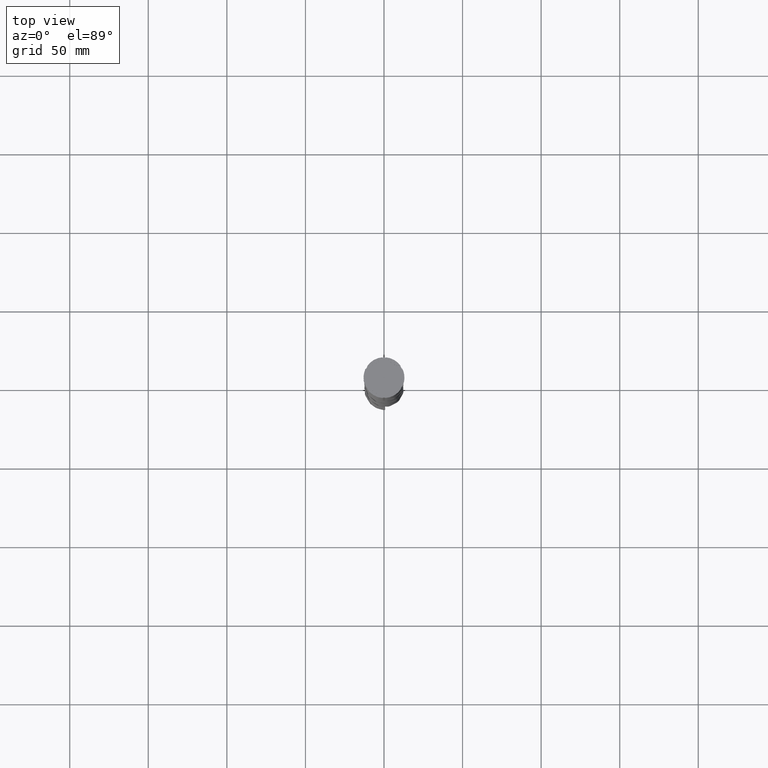
[diagram: clean part render]
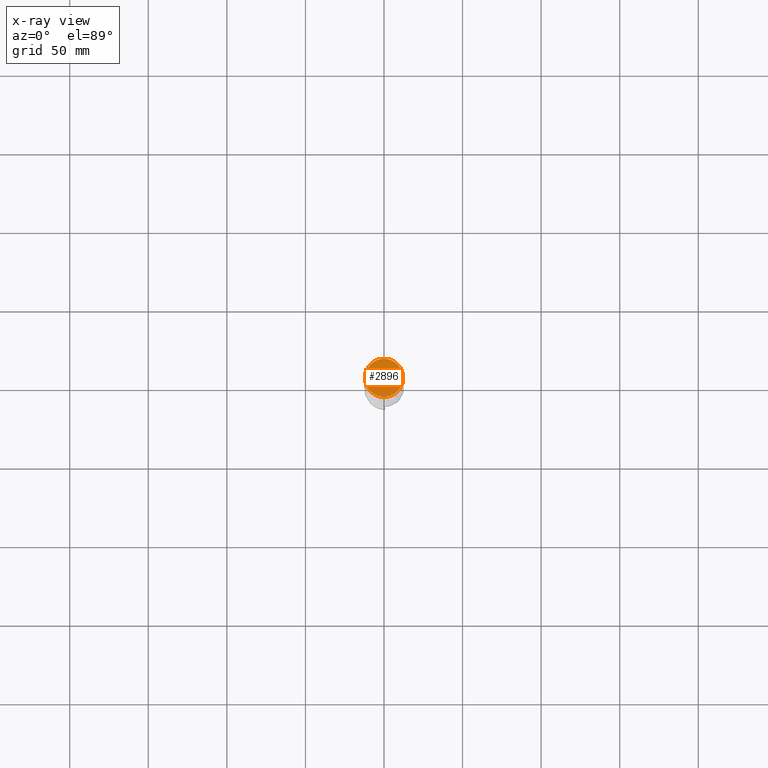
[diagram: x-ray — body ghosted, one internal face saturated and labeled with its STEP entity id]
A machine part, top view, then the same camera in x-ray: the body is ghosted and one INTERNAL B-rep face — a face not visible from any outside direction — is saturated and labeled: STEP entity #2896.
In plain terms, the highlighted planar face has unit normal (0, 0, -1).
Its self-contained STEP definition (entity closure, byte-faithful):
#75 = CARTESIAN_POINT ( 'NONE',  ( 0.000000000000000000, 0.000000000000000000, -12.00000000000000000 ) ) ;
#91 = ORIENTED_EDGE ( 'NONE', *, *, #1086, .T. ) ;
#288 = CARTESIAN_POINT ( 'NONE',  ( -12.20000000000000639, 0.000000000000000000, -12.00000000000000000 ) ) ;
#754 = EDGE_LOOP ( 'NONE', ( #1915, #91 ) ) ;
#862 = CARTESIAN_POINT ( 'NONE',  ( 12.20000000000000639, 1.512438796946981880E-15, -12.00000000000000000 ) ) ;
#921 = DIRECTION ( 'NONE',  ( -1.000000000000000000, 0.000000000000000000, 0.000000000000000000 ) ) ;
#1086 = EDGE_CURVE ( 'NONE', #2875, #4108, #3871, .T. ) ;
#1345 = EDGE_CURVE ( 'NONE', #4108, #2875, #2217, .T. ) ;
#1589 = PLANE ( 'NONE',  #2156 ) ;
#1649 = CARTESIAN_POINT ( 'NONE',  ( 0.000000000000000000, 0.000000000000000000, -12.00000000000000000 ) ) ;
#1667 = DIRECTION ( 'NONE',  ( -1.000000000000000000, 0.000000000000000000, -0.000000000000000000 ) ) ;
#1762 = AXIS2_PLACEMENT_3D ( 'NONE', #1882, #1907, #2643 ) ;
#1882 = CARTESIAN_POINT ( 'NONE',  ( 0.000000000000000000, 0.000000000000000000, -12.00000000000000000 ) ) ;
#1907 = DIRECTION ( 'NONE',  ( -0.000000000000000000, -0.000000000000000000, 1.000000000000000000 ) ) ;
#1915 = ORIENTED_EDGE ( 'NONE', *, *, #1345, .T. ) ;
#1945 = FACE_OUTER_BOUND ( 'NONE', #754, .T. ) ;
#2156 = AXIS2_PLACEMENT_3D ( 'NONE', #75, #4466, #1667 ) ;
#2217 = CIRCLE ( 'NONE', #4084, 12.20000000000000639 ) ;
#2643 = DIRECTION ( 'NONE',  ( -1.000000000000000000, 0.000000000000000000, 0.000000000000000000 ) ) ;
#2875 = VERTEX_POINT ( 'NONE', #862 ) ;
#2896 = ADVANCED_FACE ( 'NONE', ( #1945 ), #1589, .F. ) ;
#3871 = CIRCLE ( 'NONE', #1762, 12.20000000000000639 ) ;
#4084 = AXIS2_PLACEMENT_3D ( 'NONE', #1649, #4119, #921 ) ;
#4108 = VERTEX_POINT ( 'NONE', #288 ) ;
#4119 = DIRECTION ( 'NONE',  ( -0.000000000000000000, -0.000000000000000000, 1.000000000000000000 ) ) ;
#4466 = DIRECTION ( 'NONE',  ( 0.000000000000000000, 0.000000000000000000, -1.000000000000000000 ) ) ;